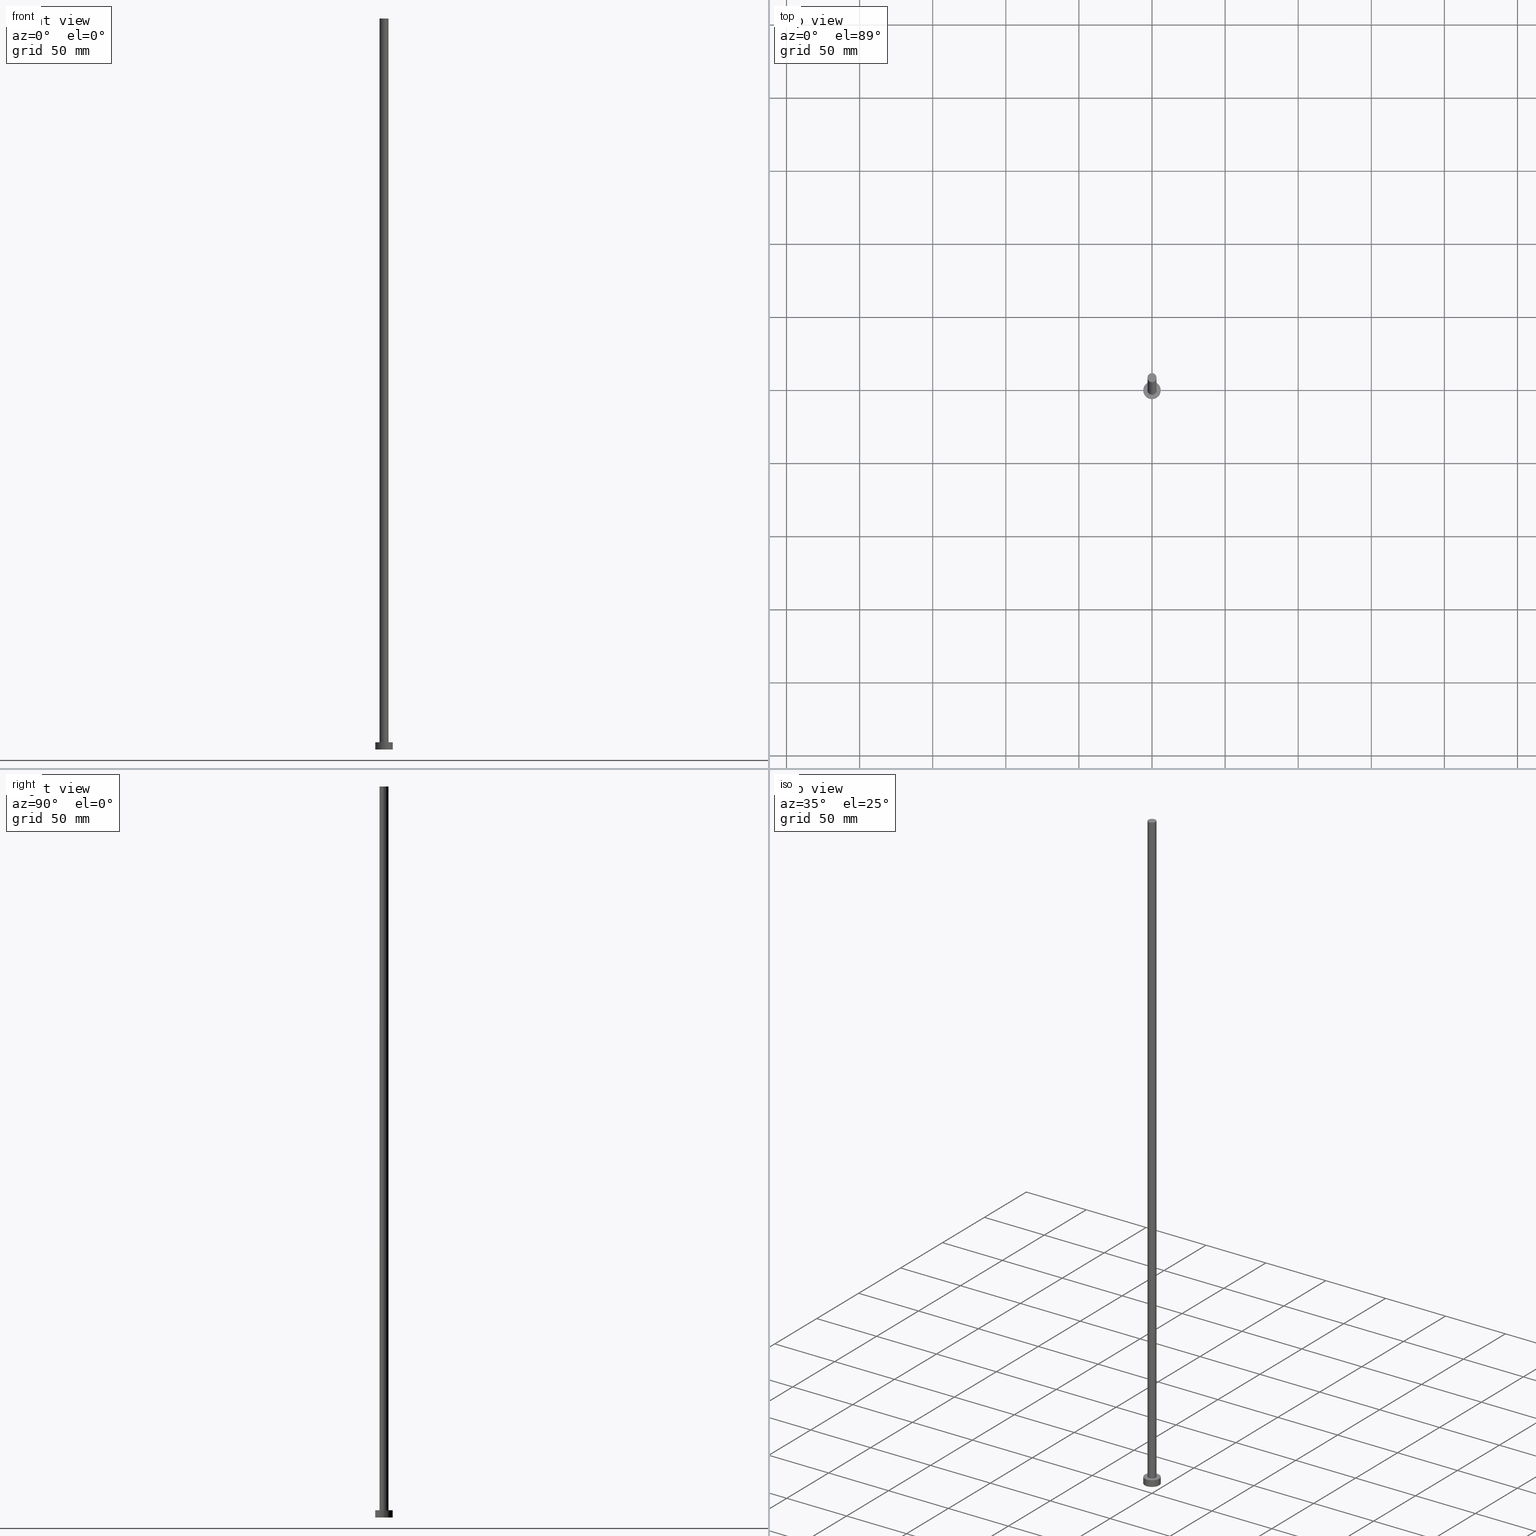
[diagram: canonical four-view strip — front | top / right | iso, engineering-drawing reading convention]
A machine part, canonical four-view strip (front | top / right | iso — engineering-drawing reading convention). The complete STEP part file that produces these views, byte-faithful:
ISO-10303-21;
HEADER;
FILE_DESCRIPTION (( 'STEP AP203' ),
    '1' );
FILE_NAME ('cd42.STEP',
    '2026-02-06T12:40:01',
    ( '' ),
    ( '' ),
    'SwSTEP 2.0',
    'SolidWorks 2019',
    '' );
FILE_SCHEMA (( 'CONFIG_CONTROL_DESIGN' ));
ENDSEC;

DATA;
#1 = DATE_AND_TIME ( #177, #224 ) ;
#2 = ORIENTED_EDGE ( 'NONE', *, *, #11, .F. ) ;
#3 = AXIS2_PLACEMENT_3D ( 'NONE', #55, #79, #169 ) ;
#4 = LINE ( 'NONE', #50, #254 ) ;
#5 = LINE ( 'NONE', #179, #214 ) ;
#6 = ORIENTED_EDGE ( 'NONE', *, *, #220, .F. ) ;
#7 = LOCAL_TIME ( 13, 40, 1.000000000000000000, #18 ) ;
#8 = EDGE_CURVE ( 'NONE', #201, #178, #114, .T. ) ;
#9 = EDGE_LOOP ( 'NONE', ( #243, #45, #30, #215 ) ) ;
#10 = CARTESIAN_POINT ( 'NONE',  ( 0.000000000000000000, 0.000000000000000000, 5.000000000000000000 ) ) ;
#11 = EDGE_CURVE ( 'NONE', #178, #201, #35, .T. ) ;
#12 = CARTESIAN_POINT ( 'NONE',  ( -6.000000000000000888, 0.000000000000000000, 5.000000000000000000 ) ) ;
#13 = DIRECTION ( 'NONE',  ( 1.000000000000000000, 0.000000000000000000, 0.000000000000000000 ) ) ;
#14 = FACE_OUTER_BOUND ( 'NONE', #216, .T. ) ;
#15 = APPROVAL_ROLE ( '' ) ;
#16 = ADVANCED_FACE ( 'NONE', ( #28 ), #85, .F. ) ;
#17 = DIRECTION ( 'NONE',  ( 0.000000000000000000, 0.000000000000000000, 1.000000000000000000 ) ) ;
#18 = COORDINATED_UNIVERSAL_TIME_OFFSET ( 1, 0, .AHEAD. ) ;
#19 = APPROVAL_PERSON_ORGANIZATION ( #53, #26, #57 ) ;
#20 = VERTEX_POINT ( 'NONE', #87 ) ;
#21 = EDGE_CURVE ( 'NONE', #204, #20, #5, .T. ) ;
#22 = UNCERTAINTY_MEASURE_WITH_UNIT (LENGTH_MEASURE( 1.000000000000000082E-05 ), #252, 'distance_accuracy_value', 'NONE');
#23 = EDGE_LOOP ( 'NONE', ( #108, #198 ) ) ;
#24 = ORIENTED_EDGE ( 'NONE', *, *, #31, .F. ) ;
#25 = PERSON_AND_ORGANIZATION_ROLE ( 'classification_officer' ) ;
#26 = APPROVAL ( #73, 'NEUR�EN�' ) ;
#27 = ORIENTED_EDGE ( 'NONE', *, *, #56, .F. ) ;
#28 = FACE_OUTER_BOUND ( 'NONE', #106, .T. ) ;
#29 = ORIENTED_EDGE ( 'NONE', *, *, #180, .F. ) ;
#30 = ORIENTED_EDGE ( 'NONE', *, *, #56, .T. ) ;
#31 = EDGE_CURVE ( 'NONE', #143, #160, #4, .T. ) ;
#32 = LINE ( 'NONE', #131, #154 ) ;
#33 = FACE_OUTER_BOUND ( 'NONE', #182, .T. ) ;
#34 = DATE_AND_TIME ( #246, #80 ) ;
#35 = CIRCLE ( 'NONE', #76, 6.000000000000000888 ) ;
#36 = DIRECTION ( 'NONE',  ( -1.000000000000000000, 0.000000000000000000, 0.000000000000000000 ) ) ;
#37 =( NAMED_UNIT ( * ) PLANE_ANGLE_UNIT ( ) SI_UNIT ( $, .RADIAN. ) );
#38 = ADVANCED_FACE ( 'NONE', ( #159 ), #242, .T. ) ;
#39 = CC_DESIGN_PERSON_AND_ORGANIZATION_ASSIGNMENT ( #113, #141, ( #104 ) ) ;
#40 = CIRCLE ( 'NONE', #62, 3.100000000000000089 ) ;
#41 = CALENDAR_DATE ( 2026, 6, 2 ) ;
#42 = PERSON ( 'NEUR�EN�', 'NEUR�EN�', 'NEUR�EN�', ('NEUR�EN�'), ('NEUR�EN�'), ('NEUR�EN�') ) ;
#43 = CIRCLE ( 'NONE', #3, 3.100000000000000089 ) ;
#44 = ORIENTED_EDGE ( 'NONE', *, *, #172, .T. ) ;
#45 = ORIENTED_EDGE ( 'NONE', *, *, #102, .T. ) ;
#46 = CLOSED_SHELL ( 'NONE', ( #74, #38, #139, #153, #16, #64, #112 ) ) ;
#47 = DIRECTION ( 'NONE',  ( -0.000000000000000000, -0.000000000000000000, -1.000000000000000000 ) ) ;
#48 = APPROVAL_PERSON_ORGANIZATION ( #192, #151, #15 ) ;
#49 = DIRECTION ( 'NONE',  ( 0.000000000000000000, 0.000000000000000000, 1.000000000000000000 ) ) ;
#50 = CARTESIAN_POINT ( 'NONE',  ( -3.100000000000000089, 0.000000000000000000, 500.0000000000000000 ) ) ;
#51 = ORIENTED_EDGE ( 'NONE', *, *, #31, .T. ) ;
#52 = CYLINDRICAL_SURFACE ( 'NONE', #202, 3.100000000000000089 ) ;
#53 = PERSON_AND_ORGANIZATION ( #42, #97 ) ;
#54 = CARTESIAN_POINT ( 'NONE',  ( 0.000000000000000000, 0.000000000000000000, 5.000000000000000000 ) ) ;
#55 = CARTESIAN_POINT ( 'NONE',  ( 0.000000000000000000, 0.000000000000000000, 500.0000000000000000 ) ) ;
#56 = EDGE_CURVE ( 'NONE', #123, #124, #173, .T. ) ;
#57 = APPROVAL_ROLE ( '' ) ;
#58 = APPROVAL_ROLE ( '' ) ;
#59 = APPROVAL_STATUS ( 'not_yet_approved' ) ;
#60 = CC_DESIGN_PERSON_AND_ORGANIZATION_ASSIGNMENT ( #98, #25, ( #78 ) ) ;
#61 = AXIS2_PLACEMENT_3D ( 'NONE', #239, #47, #126 ) ;
#62 = AXIS2_PLACEMENT_3D ( 'NONE', #111, #88, #115 ) ;
#63 = DIRECTION ( 'NONE',  ( 1.000000000000000000, 0.000000000000000000, -0.000000000000000000 ) ) ;
#64 = ADVANCED_FACE ( 'NONE', ( #144 ), #127, .T. ) ;
#65 = ORIENTED_EDGE ( 'NONE', *, *, #240, .F. ) ;
#66 = DIRECTION ( 'NONE',  ( 1.000000000000000000, 0.000000000000000000, 0.000000000000000000 ) ) ;
#67 = CARTESIAN_POINT ( 'NONE',  ( 0.000000000000000000, 0.000000000000000000, 500.0000000000000000 ) ) ;
#68 = PRODUCT_DEFINITION ( 'NEZN�M�', '', #104, #218 ) ;
#69 = ORIENTED_EDGE ( 'NONE', *, *, #240, .T. ) ;
#70 = DIRECTION ( 'NONE',  ( 1.000000000000000000, 0.000000000000000000, -0.000000000000000000 ) ) ;
#71 = CARTESIAN_POINT ( 'NONE',  ( 0.000000000000000000, 0.000000000000000000, 0.000000000000000000 ) ) ;
#72 = DIRECTION ( 'NONE',  ( -1.000000000000000000, 0.000000000000000000, 0.000000000000000000 ) ) ;
#73 = APPROVAL_STATUS ( 'not_yet_approved' ) ;
#74 = ADVANCED_FACE ( 'NONE', ( #149 ), #52, .T. ) ;
#75 =( NAMED_UNIT ( * ) SI_UNIT ( $, .STERADIAN. ) SOLID_ANGLE_UNIT ( ) );
#76 = AXIS2_PLACEMENT_3D ( 'NONE', #217, #49, #238 ) ;
#77 = DIRECTION ( 'NONE',  ( 1.000000000000000000, 0.000000000000000000, 0.000000000000000000 ) ) ;
#78 = SECURITY_CLASSIFICATION ( '', '', #199 ) ;
#79 = DIRECTION ( 'NONE',  ( 0.000000000000000000, 0.000000000000000000, 1.000000000000000000 ) ) ;
#80 = LOCAL_TIME ( 13, 40, 1.000000000000000000, #164 ) ;
#81 = APPROVAL_PERSON_ORGANIZATION ( #235, #241, #58 ) ;
#82 = DIRECTION ( 'NONE',  ( 0.000000000000000000, 0.000000000000000000, 1.000000000000000000 ) ) ;
#83 = DIRECTION ( 'NONE',  ( -0.000000000000000000, -0.000000000000000000, -1.000000000000000000 ) ) ;
#84 = DIRECTION ( 'NONE',  ( 0.000000000000000000, 0.000000000000000000, 1.000000000000000000 ) ) ;
#85 = PLANE ( 'NONE',  #135 ) ;
#86 = AXIS2_PLACEMENT_3D ( 'NONE', #10, #245, #70 ) ;
#87 = CARTESIAN_POINT ( 'NONE',  ( 3.100000000000000089, 3.796405077356794918E-16, 5.000000000000000000 ) ) ;
#88 = DIRECTION ( 'NONE',  ( 0.000000000000000000, 0.000000000000000000, 1.000000000000000000 ) ) ;
#89 = CARTESIAN_POINT ( 'NONE',  ( -3.100000000000000089, 0.000000000000000000, 5.000000000000000000 ) ) ;
#90 = DIRECTION ( 'NONE',  ( -0.000000000000000000, -0.000000000000000000, -1.000000000000000000 ) ) ;
#91 = DIRECTION ( 'NONE',  ( 1.000000000000000000, 0.000000000000000000, 0.000000000000000000 ) ) ;
#92 = CIRCLE ( 'NONE', #229, 3.100000000000000089 ) ;
#93 = EDGE_CURVE ( 'NONE', #20, #160, #40, .T. ) ;
#94 = DIRECTION ( 'NONE',  ( -1.000000000000000000, 0.000000000000000000, 0.000000000000000000 ) ) ;
#95 = APPLICATION_CONTEXT ( 'configuration controlled 3d designs of mechanical parts and assemblies' ) ;
#96 = PERSON_AND_ORGANIZATION ( #42, #97 ) ;
#97 = ORGANIZATION ( 'NEUR�EN�', 'NEUR�EN�', '' ) ;
#98 = PERSON_AND_ORGANIZATION ( #42, #97 ) ;
#99 = CALENDAR_DATE ( 2026, 6, 2 ) ;
#100 = CC_DESIGN_APPROVAL ( #151, ( #104 ) ) ;
#101 = COORDINATED_UNIVERSAL_TIME_OFFSET ( 1, 0, .AHEAD. ) ;
#102 = EDGE_CURVE ( 'NONE', #201, #123, #32, .T. ) ;
#103 = ORIENTED_EDGE ( 'NONE', *, *, #21, .T. ) ;
#104 = PRODUCT_DEFINITION_FORMATION_WITH_SPECIFIED_SOURCE ( 'LIBOVOLN�', '', #222, .NOT_KNOWN. ) ;
#105 = ORIENTED_EDGE ( 'NONE', *, *, #102, .F. ) ;
#106 = EDGE_LOOP ( 'NONE', ( #65, #27 ) ) ;
#107 = PRODUCT_RELATED_PRODUCT_CATEGORY ( 'detail', '', ( #222 ) ) ;
#108 = ORIENTED_EDGE ( 'NONE', *, *, #11, .T. ) ;
#109 = DIRECTION ( 'NONE',  ( 1.000000000000000000, 0.000000000000000000, 0.000000000000000000 ) ) ;
#110 = DIRECTION ( 'NONE',  ( 1.000000000000000000, 0.000000000000000000, -0.000000000000000000 ) ) ;
#111 = CARTESIAN_POINT ( 'NONE',  ( 0.000000000000000000, 0.000000000000000000, 5.000000000000000000 ) ) ;
#112 = ADVANCED_FACE ( 'NONE', ( #33 ), #248, .T. ) ;
#113 = PERSON_AND_ORGANIZATION ( #42, #97 ) ;
#114 = CIRCLE ( 'NONE', #156, 6.000000000000000888 ) ;
#115 = DIRECTION ( 'NONE',  ( 1.000000000000000000, 0.000000000000000000, 0.000000000000000000 ) ) ;
#116 = DATE_AND_TIME ( #193, #7 ) ;
#117 = AXIS2_PLACEMENT_3D ( 'NONE', #203, #84, #66 ) ;
#118 = DIRECTION ( 'NONE',  ( 0.000000000000000000, 0.000000000000000000, 1.000000000000000000 ) ) ;
#119 = DATE_AND_TIME ( #41, #196 ) ;
#120 = ADVANCED_BREP_SHAPE_REPRESENTATION ( 'cd42', ( #171, #213 ), #190 ) ;
#121 = EDGE_CURVE ( 'NONE', #178, #124, #207, .T. ) ;
#122 = AXIS2_PLACEMENT_3D ( 'NONE', #71, #251, #136 ) ;
#123 = VERTEX_POINT ( 'NONE', #166 ) ;
#124 = VERTEX_POINT ( 'NONE', #226 ) ;
#125 = CC_DESIGN_SECURITY_CLASSIFICATION ( #78, ( #104 ) ) ;
#126 = DIRECTION ( 'NONE',  ( -1.000000000000000000, 0.000000000000000000, 0.000000000000000000 ) ) ;
#127 = CYLINDRICAL_SURFACE ( 'NONE', #165, 3.100000000000000089 ) ;
#128 = DIRECTION ( 'NONE',  ( -0.000000000000000000, -0.000000000000000000, -1.000000000000000000 ) ) ;
#129 = FACE_OUTER_BOUND ( 'NONE', #23, .T. ) ;
#130 = AXIS2_PLACEMENT_3D ( 'NONE', #230, #118, #77 ) ;
#131 = CARTESIAN_POINT ( 'NONE',  ( 6.000000000000000888, 7.347880794884120722E-16, 5.000000000000000000 ) ) ;
#132 = APPROVAL_DATE_TIME ( #116, #26 ) ;
#133 = DIRECTION ( 'NONE',  ( 0.000000000000000000, 0.000000000000000000, 1.000000000000000000 ) ) ;
#134 = APPLICATION_PROTOCOL_DEFINITION ( 'international standard', 'config_control_design', 1994, #95 ) ;
#135 = AXIS2_PLACEMENT_3D ( 'NONE', #219, #161, #63 ) ;
#136 = DIRECTION ( 'NONE',  ( 1.000000000000000000, 0.000000000000000000, 0.000000000000000000 ) ) ;
#137 = CC_DESIGN_APPROVAL ( #241, ( #78 ) ) ;
#138 = CIRCLE ( 'NONE', #122, 6.000000000000000888 ) ;
#139 = ADVANCED_FACE ( 'NONE', ( #14 ), #191, .T. ) ;
#140 = SHAPE_DEFINITION_REPRESENTATION ( #186, #120 ) ;
#141 = PERSON_AND_ORGANIZATION_ROLE ( 'creator' ) ;
#142 = DIRECTION ( 'NONE',  ( -0.000000000000000000, -0.000000000000000000, -1.000000000000000000 ) ) ;
#143 = VERTEX_POINT ( 'NONE', #147 ) ;
#144 = FACE_OUTER_BOUND ( 'NONE', #244, .T. ) ;
#145 = ORIENTED_EDGE ( 'NONE', *, *, #172, .F. ) ;
#146 = ORIENTED_EDGE ( 'NONE', *, *, #93, .T. ) ;
#147 = CARTESIAN_POINT ( 'NONE',  ( -3.100000000000000089, 0.000000000000000000, 500.0000000000000000 ) ) ;
#148 = VECTOR ( 'NONE', #90, 1000.000000000000000 ) ;
#149 = FACE_OUTER_BOUND ( 'NONE', #158, .T. ) ;
#150 = PERSON_AND_ORGANIZATION ( #42, #97 ) ;
#151 = APPROVAL ( #208, 'NEUR�EN�' ) ;
#152 = DIRECTION ( 'NONE',  ( 0.000000000000000000, 0.000000000000000000, 1.000000000000000000 ) ) ;
#153 = ADVANCED_FACE ( 'NONE', ( #163, #129 ), #187, .T. ) ;
#154 = VECTOR ( 'NONE', #188, 1000.000000000000000 ) ;
#155 = APPROVAL_DATE_TIME ( #1, #241 ) ;
#156 = AXIS2_PLACEMENT_3D ( 'NONE', #205, #82, #109 ) ;
#157 = CC_DESIGN_APPROVAL ( #26, ( #68 ) ) ;
#158 = EDGE_LOOP ( 'NONE', ( #145, #103, #146, #24 ) ) ;
#159 = FACE_OUTER_BOUND ( 'NONE', #9, .T. ) ;
#160 = VERTEX_POINT ( 'NONE', #89 ) ;
#161 = DIRECTION ( 'NONE',  ( 0.000000000000000000, 0.000000000000000000, 1.000000000000000000 ) ) ;
#162 = ORIENTED_EDGE ( 'NONE', *, *, #180, .T. ) ;
#163 = FACE_BOUND ( 'NONE', #223, .T. ) ;
#164 = COORDINATED_UNIVERSAL_TIME_OFFSET ( 1, 0, .AHEAD. ) ;
#165 = AXIS2_PLACEMENT_3D ( 'NONE', #67, #128, #72 ) ;
#166 = CARTESIAN_POINT ( 'NONE',  ( 6.000000000000000888, 7.347880794884120722E-16, 0.000000000000000000 ) ) ;
#167 = CARTESIAN_POINT ( 'NONE',  ( 0.000000000000000000, 0.000000000000000000, 500.0000000000000000 ) ) ;
#168 = APPROVAL_DATE_TIME ( #34, #151 ) ;
#169 = DIRECTION ( 'NONE',  ( 1.000000000000000000, 0.000000000000000000, 0.000000000000000000 ) ) ;
#170 = PERSON_AND_ORGANIZATION_ROLE ( 'creator' ) ;
#171 = MANIFOLD_SOLID_BREP ( 'P�idat vysunut�m3', #46 ) ;
#172 = EDGE_CURVE ( 'NONE', #204, #143, #43, .T. ) ;
#173 = CIRCLE ( 'NONE', #117, 6.000000000000000888 ) ;
#174 = DATE_TIME_ROLE ( 'classification_date' ) ;
#175 = DATE_AND_TIME ( #99, #211 ) ;
#176 = CC_DESIGN_PERSON_AND_ORGANIZATION_ASSIGNMENT ( #150, #194, ( #222 ) ) ;
#177 = CALENDAR_DATE ( 2026, 6, 2 ) ;
#178 = VERTEX_POINT ( 'NONE', #210 ) ;
#179 = CARTESIAN_POINT ( 'NONE',  ( 3.100000000000000089, 3.796405077356794918E-16, 500.0000000000000000 ) ) ;
#180 = EDGE_CURVE ( 'NONE', #143, #204, #92, .T. ) ;
#181 = ORIENTED_EDGE ( 'NONE', *, *, #93, .F. ) ;
#182 = EDGE_LOOP ( 'NONE', ( #162, #44 ) ) ;
#183 = CC_DESIGN_DATE_AND_TIME_ASSIGNMENT ( #119, #195, ( #68 ) ) ;
#184 = AXIS2_PLACEMENT_3D ( 'NONE', #167, #133, #110 ) ;
#185 = ORIENTED_EDGE ( 'NONE', *, *, #21, .F. ) ;
#186 = PRODUCT_DEFINITION_SHAPE ( 'NONE', 'NONE',  #68 ) ;
#187 = PLANE ( 'NONE',  #86 ) ;
#188 = DIRECTION ( 'NONE',  ( -0.000000000000000000, -0.000000000000000000, -1.000000000000000000 ) ) ;
#189 = CARTESIAN_POINT ( 'NONE',  ( 6.000000000000000888, 7.347880794884120722E-16, 5.000000000000000000 ) ) ;
#190 =( GEOMETRIC_REPRESENTATION_CONTEXT ( 3 ) GLOBAL_UNCERTAINTY_ASSIGNED_CONTEXT ( ( #22 ) ) GLOBAL_UNIT_ASSIGNED_CONTEXT ( ( #252, #37, #75 ) ) REPRESENTATION_CONTEXT ( 'NONE', 'WORKASPACE' ) );
#191 = CYLINDRICAL_SURFACE ( 'NONE', #247, 6.000000000000000888 ) ;
#192 = PERSON_AND_ORGANIZATION ( #42, #97 ) ;
#193 = CALENDAR_DATE ( 2026, 6, 2 ) ;
#194 = PERSON_AND_ORGANIZATION_ROLE ( 'design_owner' ) ;
#195 = DATE_TIME_ROLE ( 'creation_date' ) ;
#196 = LOCAL_TIME ( 13, 40, 1.000000000000000000, #212 ) ;
#197 = COORDINATED_UNIVERSAL_TIME_OFFSET ( 1, 0, .AHEAD. ) ;
#198 = ORIENTED_EDGE ( 'NONE', *, *, #8, .T. ) ;
#199 = SECURITY_CLASSIFICATION_LEVEL ( 'unclassified' ) ;
#200 = ORIENTED_EDGE ( 'NONE', *, *, #220, .T. ) ;
#201 = VERTEX_POINT ( 'NONE', #189 ) ;
#202 = AXIS2_PLACEMENT_3D ( 'NONE', #209, #206, #36 ) ;
#203 = CARTESIAN_POINT ( 'NONE',  ( 0.000000000000000000, 0.000000000000000000, 0.000000000000000000 ) ) ;
#204 = VERTEX_POINT ( 'NONE', #228 ) ;
#205 = CARTESIAN_POINT ( 'NONE',  ( 0.000000000000000000, 0.000000000000000000, 5.000000000000000000 ) ) ;
#206 = DIRECTION ( 'NONE',  ( -0.000000000000000000, -0.000000000000000000, -1.000000000000000000 ) ) ;
#207 = LINE ( 'NONE', #12, #148 ) ;
#208 = APPROVAL_STATUS ( 'not_yet_approved' ) ;
#209 = CARTESIAN_POINT ( 'NONE',  ( 0.000000000000000000, 0.000000000000000000, 500.0000000000000000 ) ) ;
#210 = CARTESIAN_POINT ( 'NONE',  ( -6.000000000000000888, 0.000000000000000000, 5.000000000000000000 ) ) ;
#211 = LOCAL_TIME ( 13, 40, 1.000000000000000000, #197 ) ;
#212 = COORDINATED_UNIVERSAL_TIME_OFFSET ( 1, 0, .AHEAD. ) ;
#213 = AXIS2_PLACEMENT_3D ( 'NONE', #250, #17, #13 ) ;
#214 = VECTOR ( 'NONE', #142, 1000.000000000000000 ) ;
#215 = ORIENTED_EDGE ( 'NONE', *, *, #121, .F. ) ;
#216 = EDGE_LOOP ( 'NONE', ( #105, #2, #221, #69 ) ) ;
#217 = CARTESIAN_POINT ( 'NONE',  ( 0.000000000000000000, 0.000000000000000000, 5.000000000000000000 ) ) ;
#218 = DESIGN_CONTEXT ( 'detailed design', #95, 'design' ) ;
#219 = CARTESIAN_POINT ( 'NONE',  ( 0.000000000000000000, 0.000000000000000000, 0.000000000000000000 ) ) ;
#220 = EDGE_CURVE ( 'NONE', #160, #20, #234, .T. ) ;
#221 = ORIENTED_EDGE ( 'NONE', *, *, #121, .T. ) ;
#222 = PRODUCT ( 'cd42', 'cd42', '', ( #249 ) ) ;
#223 = EDGE_LOOP ( 'NONE', ( #6, #181 ) ) ;
#224 = LOCAL_TIME ( 13, 40, 1.000000000000000000, #101 ) ;
#225 = DIRECTION ( 'NONE',  ( -0.000000000000000000, -0.000000000000000000, -1.000000000000000000 ) ) ;
#226 = CARTESIAN_POINT ( 'NONE',  ( -6.000000000000000888, 0.000000000000000000, 0.000000000000000000 ) ) ;
#227 = CARTESIAN_POINT ( 'NONE',  ( 0.000000000000000000, 0.000000000000000000, 500.0000000000000000 ) ) ;
#228 = CARTESIAN_POINT ( 'NONE',  ( 3.100000000000000089, 3.796405077356794918E-16, 500.0000000000000000 ) ) ;
#229 = AXIS2_PLACEMENT_3D ( 'NONE', #227, #152, #91 ) ;
#230 = CARTESIAN_POINT ( 'NONE',  ( 0.000000000000000000, 0.000000000000000000, 5.000000000000000000 ) ) ;
#231 = CC_DESIGN_PERSON_AND_ORGANIZATION_ASSIGNMENT ( #96, #170, ( #68 ) ) ;
#232 = CC_DESIGN_PERSON_AND_ORGANIZATION_ASSIGNMENT ( #255, #237, ( #104 ) ) ;
#233 = APPLICATION_PROTOCOL_DEFINITION ( 'international standard', 'config_control_design', 1994, #236 ) ;
#234 = CIRCLE ( 'NONE', #130, 3.100000000000000089 ) ;
#235 = PERSON_AND_ORGANIZATION ( #42, #97 ) ;
#236 = APPLICATION_CONTEXT ( 'configuration controlled 3d designs of mechanical parts and assemblies' ) ;
#237 = PERSON_AND_ORGANIZATION_ROLE ( 'design_supplier' ) ;
#238 = DIRECTION ( 'NONE',  ( 1.000000000000000000, 0.000000000000000000, 0.000000000000000000 ) ) ;
#239 = CARTESIAN_POINT ( 'NONE',  ( 0.000000000000000000, 0.000000000000000000, 5.000000000000000000 ) ) ;
#240 = EDGE_CURVE ( 'NONE', #124, #123, #138, .T. ) ;
#241 = APPROVAL ( #59, 'NEUR�EN�' ) ;
#242 = CYLINDRICAL_SURFACE ( 'NONE', #61, 6.000000000000000888 ) ;
#243 = ORIENTED_EDGE ( 'NONE', *, *, #8, .F. ) ;
#244 = EDGE_LOOP ( 'NONE', ( #185, #29, #51, #200 ) ) ;
#245 = DIRECTION ( 'NONE',  ( 0.000000000000000000, 0.000000000000000000, 1.000000000000000000 ) ) ;
#246 = CALENDAR_DATE ( 2026, 6, 2 ) ;
#247 = AXIS2_PLACEMENT_3D ( 'NONE', #54, #225, #94 ) ;
#248 = PLANE ( 'NONE',  #184 ) ;
#249 = MECHANICAL_CONTEXT ( 'NONE', #236, 'mechanical' ) ;
#250 = CARTESIAN_POINT ( 'NONE',  ( 0.000000000000000000, 0.000000000000000000, 0.000000000000000000 ) ) ;
#251 = DIRECTION ( 'NONE',  ( 0.000000000000000000, 0.000000000000000000, 1.000000000000000000 ) ) ;
#252 =( LENGTH_UNIT ( ) NAMED_UNIT ( * ) SI_UNIT ( .MILLI., .METRE. ) );
#253 = CC_DESIGN_DATE_AND_TIME_ASSIGNMENT ( #175, #174, ( #78 ) ) ;
#254 = VECTOR ( 'NONE', #83, 1000.000000000000000 ) ;
#255 = PERSON_AND_ORGANIZATION ( #42, #97 ) ;
ENDSEC;
END-ISO-10303-21;
